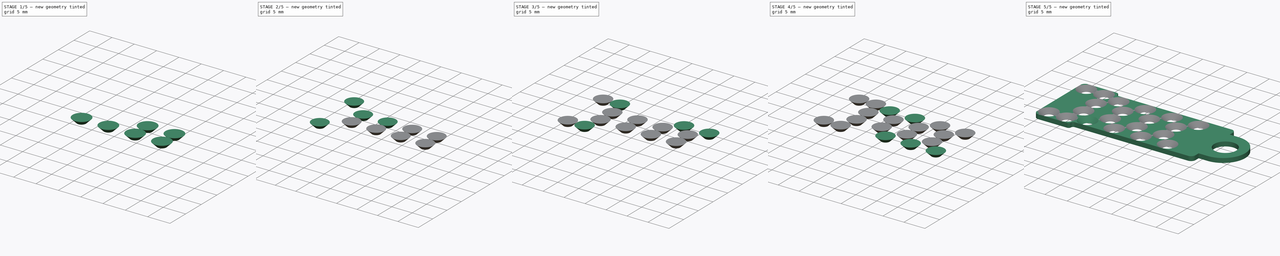
[diagram: build sequence overview — one tinted view per stage of 5, left to right]
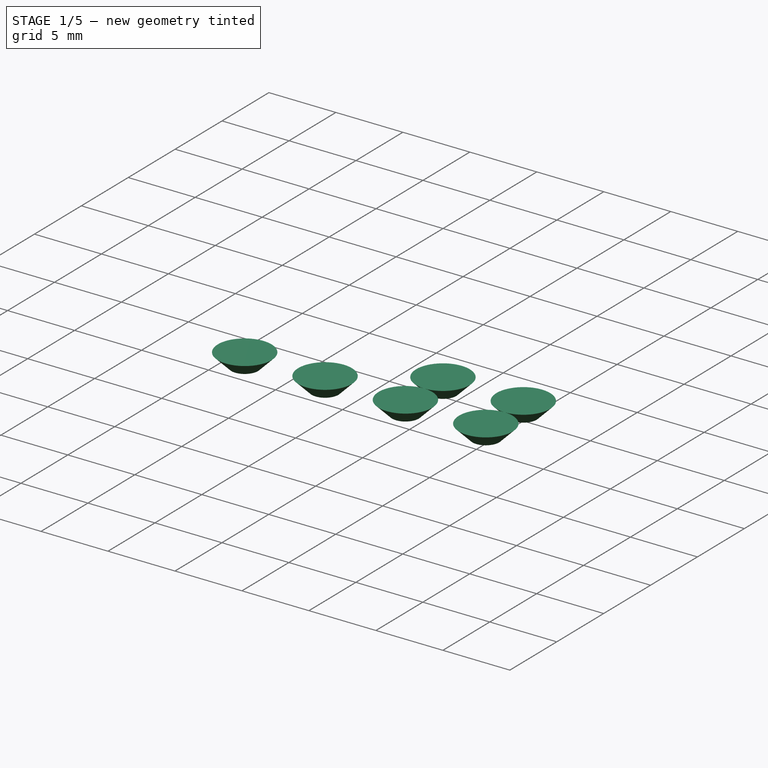
[diagram: stage 1 of 5 — iso view after this stage's code; geometry added in this stage tinted green]
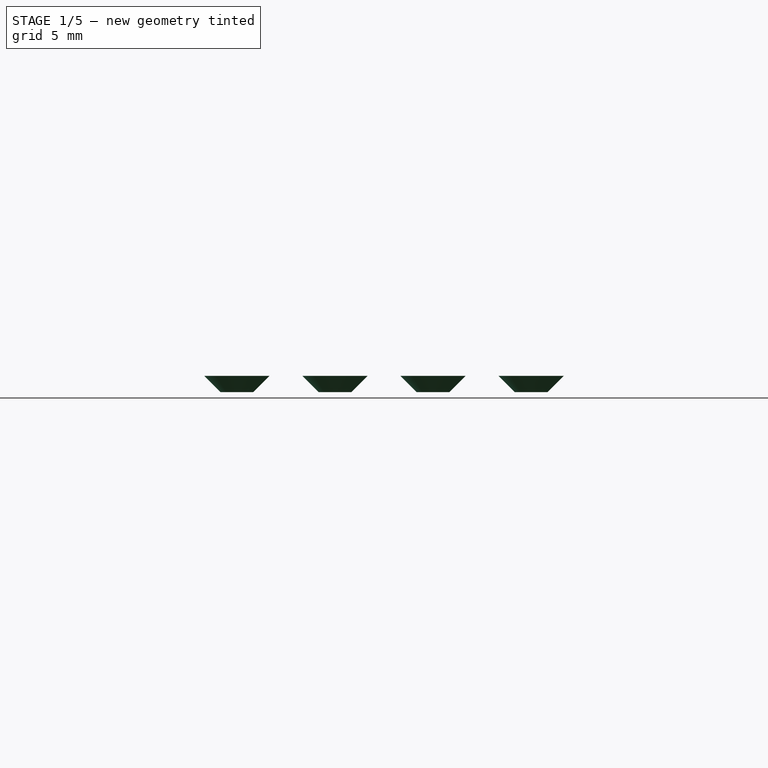
[diagram: stage 1 of 5 — front view after this stage's code; geometry added in this stage tinted green]
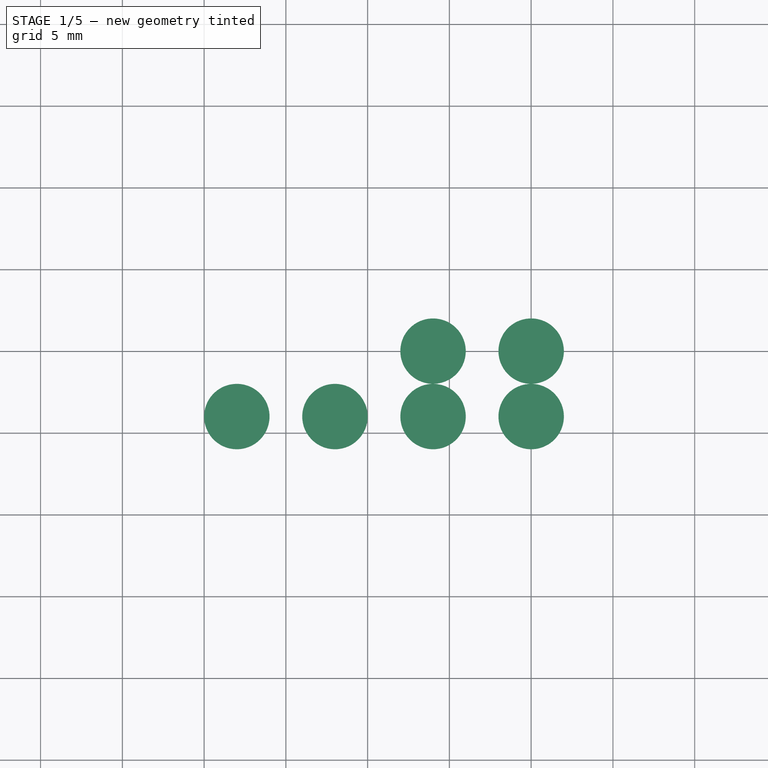
[diagram: stage 1 of 5 — top view after this stage's code; geometry added in this stage tinted green]
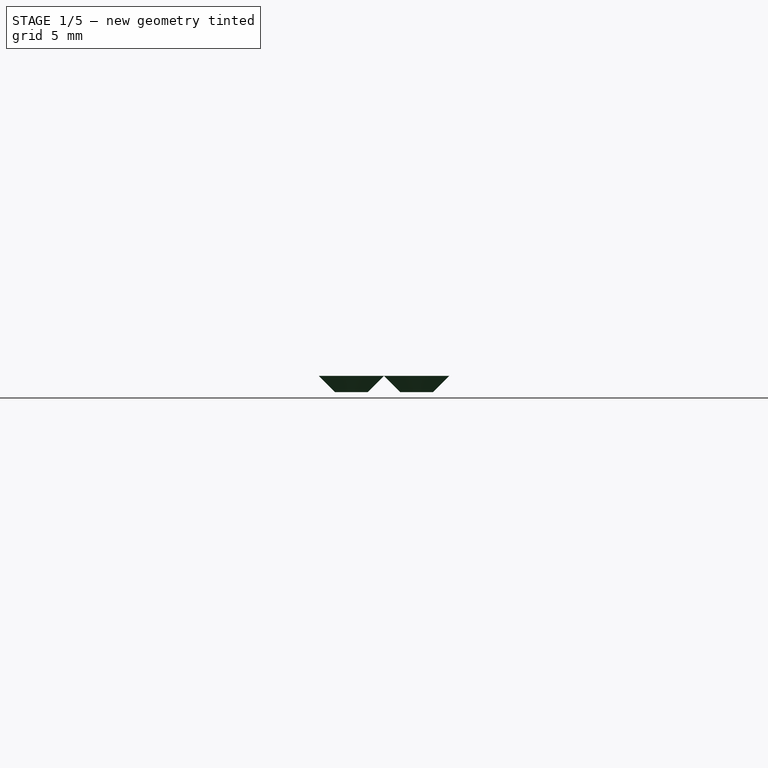
[diagram: stage 1 of 5 — right view after this stage's code; geometry added in this stage tinted green]
FCSTD DOCUMENT  (FreeCAD 0.14R3702 (Git))
Label: scaleauto-c
License: CC-BY 3.0
LicenseURL: http://creativecommons.org/licenses/by/3.0/
objects: Sketcher::SketchObject×42, Part::Loft×20, Part::MultiFuse×9, Part::Extrusion×2, Part::Cut×2
note: 75 computed .brp shape members not serialized (recipe doc carries the construction recipe); baked Part::Feature solids carry a one-line shape summary decoded from their .brp

FEATURE [Sketcher::SketchObject] Sketch010
  sketch-geometry (1):
    g0: Circle CenterX=2 CenterY=2 CenterZ=0 NormalX=0 NormalY=0 NormalZ=1 Radius=1
FEATURE [Sketcher::SketchObject] Sketch011
  Placement = pos=(0,0,1) rot=(0,0,1;0rad)
  sketch-geometry (1):
    g0: Circle CenterX=2 CenterY=2 CenterZ=0 NormalX=0 NormalY=0 NormalZ=1 Radius=2
FEATURE [Part::Loft] Loft004
  Closed = false
  Placement = pos=(5,4,0) rot=(0,0,1;0rad)
  Ruled = false
  Sections = -> [Sketch011,Sketch010]
  Solid = true
FEATURE [Sketcher::SketchObject] Sketch016
  sketch-geometry (1):
    g0: Circle CenterX=2 CenterY=2 CenterZ=0 NormalX=0 NormalY=0 NormalZ=1 Radius=1
FEATURE [Sketcher::SketchObject] Sketch017
  Placement = pos=(0,0,1) rot=(0,0,1;0rad)
  sketch-geometry (1):
    g0: Circle CenterX=2 CenterY=2 CenterZ=0 NormalX=0 NormalY=0 NormalZ=1 Radius=2
FEATURE [Part::Loft] Loft007
  Closed = false
  Placement = pos=(11,4,0) rot=(0,0,1;0rad)
  Ruled = false
  Sections = -> [Sketch017,Sketch016]
  Solid = true
FEATURE [Sketcher::SketchObject] Sketch018
  sketch-geometry (1):
    g0: Circle CenterX=2 CenterY=2 CenterZ=0 NormalX=0 NormalY=0 NormalZ=1 Radius=1
FEATURE [Sketcher::SketchObject] Sketch019
  Placement = pos=(0,0,1) rot=(0,0,1;0rad)
  sketch-geometry (1):
    g0: Circle CenterX=2 CenterY=2 CenterZ=0 NormalX=0 NormalY=0 NormalZ=1 Radius=2
FEATURE [Part::Loft] Loft008
  Closed = false
  Placement = pos=(17,4,0) rot=(0,0,1;0rad)
  Ruled = false
  Sections = -> [Sketch019,Sketch018]
  Solid = true
FEATURE [Sketcher::SketchObject] Sketch020
  sketch-geometry (1):
    g0: Circle CenterX=2 CenterY=2 CenterZ=0 NormalX=0 NormalY=0 NormalZ=1 Radius=1
FEATURE [Sketcher::SketchObject] Sketch021
  Placement = pos=(0,0,1) rot=(0,0,1;0rad)
  sketch-geometry (1):
    g0: Circle CenterX=2 CenterY=2 CenterZ=0 NormalX=0 NormalY=0 NormalZ=1 Radius=2
FEATURE [Part::Loft] Loft009
  Closed = false
  Placement = pos=(17,8,0) rot=(0,0,1;0rad)
  Ruled = false
  Sections = -> [Sketch021,Sketch020]
  Solid = true
FEATURE [Sketcher::SketchObject] Sketch022
  sketch-geometry (1):
    g0: Circle CenterX=2 CenterY=2 CenterZ=0 NormalX=0 NormalY=0 NormalZ=1 Radius=1
FEATURE [Sketcher::SketchObject] Sketch023
  Placement = pos=(0,0,1) rot=(0,0,1;0rad)
  sketch-geometry (1):
    g0: Circle CenterX=2 CenterY=2 CenterZ=0 NormalX=0 NormalY=0 NormalZ=1 Radius=2
FEATURE [Part::Loft] Loft010
  Closed = false
  Placement = pos=(23,8,0) rot=(0,0,1;0rad)
  Ruled = false
  Sections = -> [Sketch023,Sketch022]
  Solid = true
FEATURE [Sketcher::SketchObject] Sketch024
  sketch-geometry (1):
    g0: Circle CenterX=2 CenterY=2 CenterZ=0 NormalX=0 NormalY=0 NormalZ=1 Radius=1
FEATURE [Sketcher::SketchObject] Sketch025
  Placement = pos=(0,0,1) rot=(0,0,1;0rad)
  sketch-geometry (1):
    g0: Circle CenterX=2 CenterY=2 CenterZ=0 NormalX=0 NormalY=0 NormalZ=1 Radius=2
FEATURE [Part::Loft] Loft011
  Closed = false
  Placement = pos=(23,4,0) rot=(0,0,1;0rad)
  Ruled = false
  Sections = -> [Sketch025,Sketch024]
  Solid = true
FEATURE [Part::MultiFuse] Fusion003
  Placement = pos=(0.001,-0.001,0) rot=(0,0,1;0rad)
  Shapes = -> [Loft008,Loft007,Loft004,Loft011]
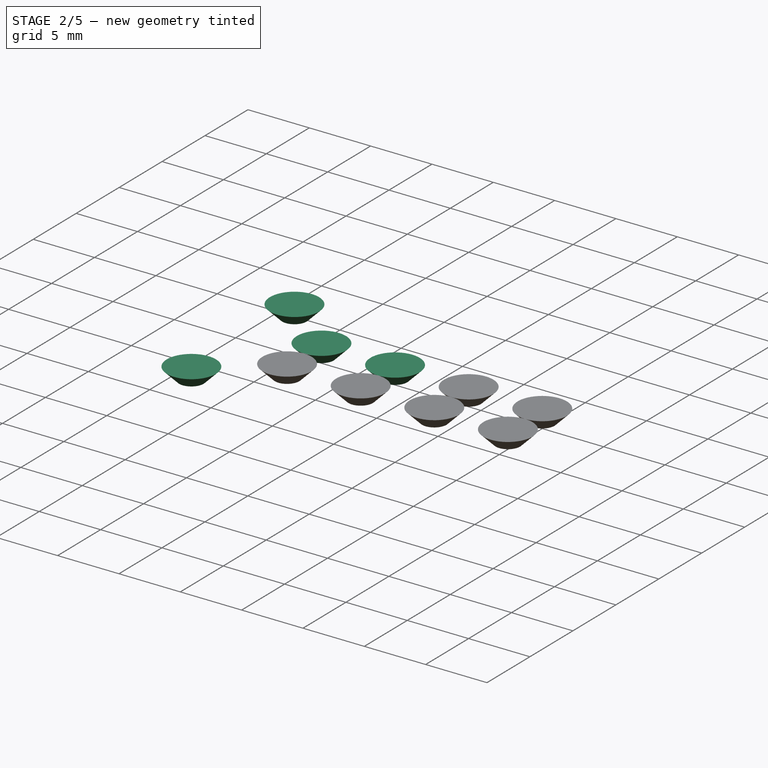
[diagram: stage 2 of 5 — iso view after this stage's code; geometry added in this stage tinted green]
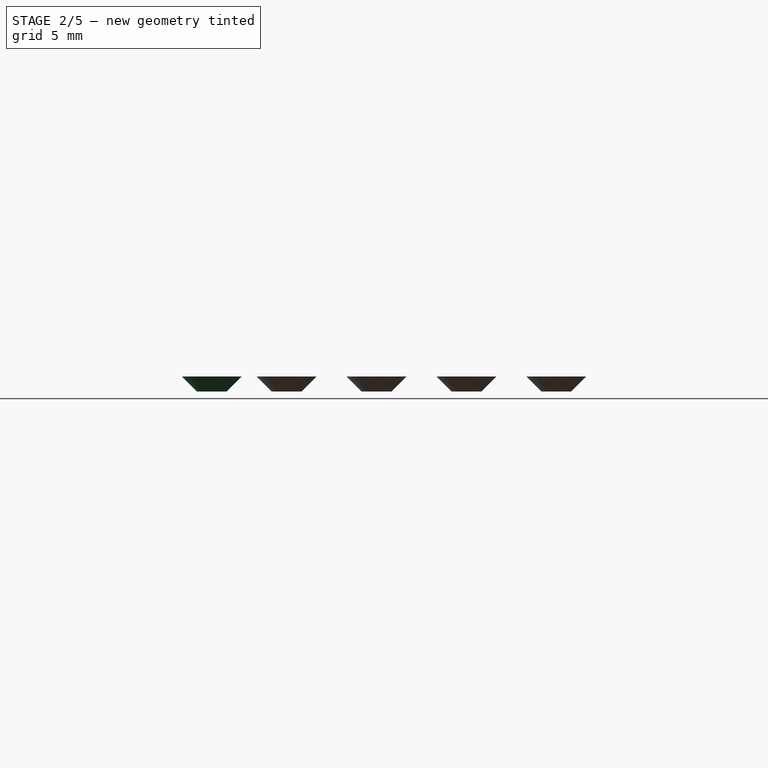
[diagram: stage 2 of 5 — front view after this stage's code; geometry added in this stage tinted green]
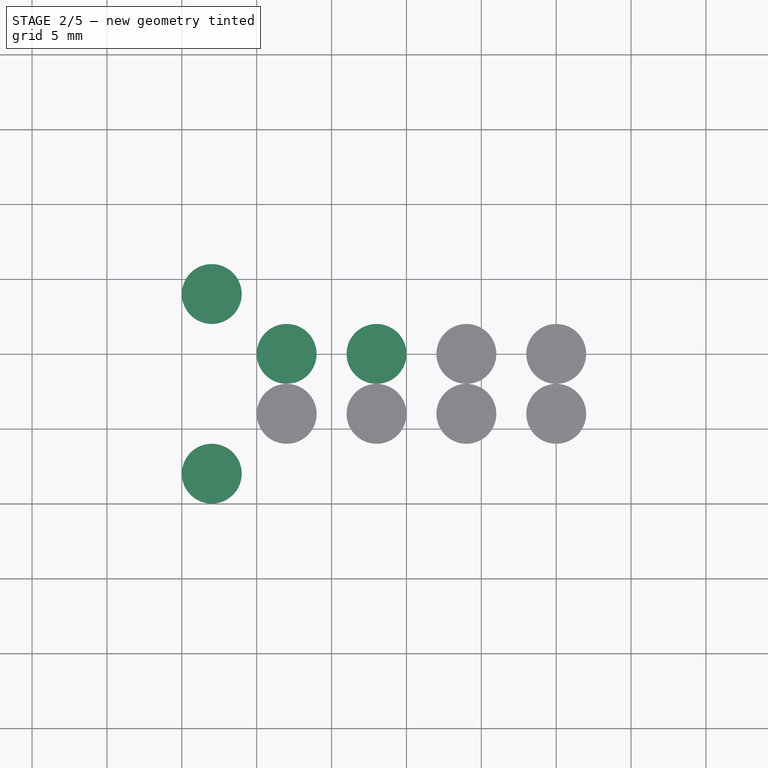
[diagram: stage 2 of 5 — top view after this stage's code; geometry added in this stage tinted green]
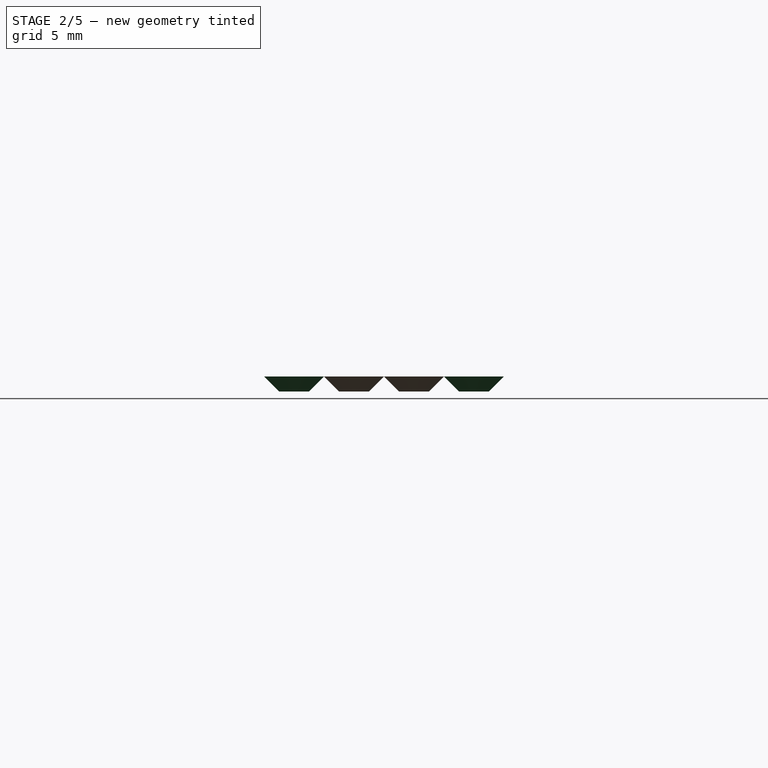
[diagram: stage 2 of 5 — right view after this stage's code; geometry added in this stage tinted green]
FEATURE [Sketcher::SketchObject] Sketch
  sketch-geometry (18):
    g0: LineSegment StartX=0 StartY=0.999999 StartZ=0 EndX=0 EndY=15 EndZ=0
    g1: ArcOfCircle CenterX=1 CenterY=1 CenterZ=0 NormalX=0 NormalY=0 NormalZ=1 Radius=1 StartAngle=3.14159 EndAngle=4.71239
    g2: ArcOfCircle CenterX=1 CenterY=15 CenterZ=0 NormalX=0 NormalY=0 NormalZ=1 Radius=1 StartAngle=1.5708 EndAngle=3.14159
    g3: LineSegment StartX=1 StartY=16 StartZ=0 EndX=7.5 EndY=16 EndZ=0
    g4: ArcOfCircle CenterX=7.5 CenterY=15.5 CenterZ=0 NormalX=0 NormalY=0 NormalZ=1 Radius=0.5 StartAngle=0 EndAngle=1.5708
    g5: ArcOfCircle CenterX=8.5 CenterY=15.5 CenterZ=0 NormalX=0 NormalY=0 NormalZ=1 Radius=0.5 StartAngle=3.14159 EndAngle=4.71239
    g6: LineSegment StartX=34 StartY=15 StartZ=0 EndX=8.5 EndY=15 EndZ=0
    g7: ArcOfCircle CenterX=34 CenterY=14 CenterZ=0 NormalX=0 NormalY=0 NormalZ=1 Radius=1 StartAngle=0 EndAngle=1.5708
    g8: LineSegment StartX=35 StartY=14 StartZ=0 EndX=35 EndY=13 EndZ=0
    g9: LineSegment StartX=7.5 StartY=-1.73205e-07 StartZ=0 EndX=1 EndY=-1.73205e-07 EndZ=0
    g10: ArcOfCircle CenterX=7.5 CenterY=0.5 CenterZ=0 NormalX=0 NormalY=0 NormalZ=1 Radius=0.5 StartAngle=4.71239 EndAngle=6.28319
    g11: ArcOfCircle CenterX=8.5 CenterY=0.5 CenterZ=0 NormalX=0 NormalY=0 NormalZ=1 Radius=0.5 StartAngle=1.5708 EndAngle=3.14159
    g12: LineSegment StartX=8.5 StartY=1 StartZ=0 EndX=34 EndY=1 EndZ=0
    g13: ArcOfCircle CenterX=34 CenterY=2 CenterZ=0 NormalX=0 NormalY=0 NormalZ=1 Radius=1 StartAngle=4.71239 EndAngle=6.28319
    g14: LineSegment StartX=35 StartY=2 StartZ=0 EndX=35 EndY=3 EndZ=0
    g15: LineSegment StartX=35 StartY=13 StartZ=0 EndX=37 EndY=13 EndZ=0
    g16: ArcOfCircle CenterX=37 CenterY=8 CenterZ=0 NormalX=0 NormalY=0 NormalZ=1 Radius=5 StartAngle=4.71239 EndAngle=7.85398
    g17: LineSegment StartX=37 StartY=3 StartZ=0 EndX=35 EndY=3 EndZ=0
  constraints (30):
    c: PointOnObject(g0,g-2)
    c: Vertical(g0)
    c: Coincident(g1,g0)
    c: Coincident(g3,g2)
    c: Horizontal(g3)
    c: Coincident(g4,g3)
    c: Coincident(g5,g4)
    c: Coincident(g6,g5)
    c: Horizontal(g6)
    c: Tangent(g6,g4)
    c: Coincident(g8,g7)
    c: Vertical(g8)
    c: Coincident(g9,g1)
    c: Horizontal(g9)
    c: Coincident(g10,g9)
    c: Coincident(g11,g10)
    c: Coincident(g12,g11)
    c: Horizontal(g12)
    c: Coincident(g13,g12)
    c: Coincident(g14,g13)
    c: Vertical(g14)
    c: Tangent(g14,g7)
    c: Coincident(g0,g2)
    c: Coincident(g7,g6)
    c: Coincident(g15,g8)
    c: Horizontal(g15)
    c: Coincident(g17,g16)
    c: Coincident(g17,g14)
    c: Horizontal(g17)
    c: Coincident(g15,g16)
FEATURE [Sketcher::SketchObject] Sketch001
  Placement = pos=(-2,0,0) rot=(0,0,1;0rad)
  sketch-geometry (1):
    g0: Circle CenterX=39.5 CenterY=8 CenterZ=0 NormalX=0 NormalY=0 NormalZ=1 Radius=2.5
FEATURE [Sketcher::SketchObject] Sketch002
  Placement = pos=(0,0,1) rot=(0,0,1;0rad)
  sketch-geometry (1):
    g0: Circle CenterX=2 CenterY=2 CenterZ=0 NormalX=0 NormalY=0 NormalZ=1 Radius=2
FEATURE [Sketcher::SketchObject] Sketch003
  sketch-geometry (1):
    g0: Circle CenterX=2 CenterY=2 CenterZ=0 NormalX=0 NormalY=0 NormalZ=1 Radius=1
FEATURE [Part::Loft] Loft
  Closed = false
  Ruled = false
  Sections = -> [Sketch002,Sketch003]
  Solid = true
FEATURE [Sketcher::SketchObject] Sketch006
  sketch-geometry (1):
    g0: Circle CenterX=2 CenterY=2 CenterZ=0 NormalX=0 NormalY=0 NormalZ=1 Radius=1
FEATURE [Sketcher::SketchObject] Sketch007
  Placement = pos=(0,0,1) rot=(0,0,1;0rad)
  sketch-geometry (1):
    g0: Circle CenterX=2 CenterY=2 CenterZ=0 NormalX=0 NormalY=0 NormalZ=1 Radius=2
FEATURE [Sketcher::SketchObject] Sketch008
  sketch-geometry (1):
    g0: Circle CenterX=2 CenterY=2 CenterZ=0 NormalX=0 NormalY=0 NormalZ=1 Radius=1
FEATURE [Part::Loft] Loft003
  Closed = false
  Placement = pos=(0,12,0) rot=(0,0,1;0rad)
  Ruled = false
  Sections = -> [Sketch007,Sketch006]
  Solid = true
FEATURE [Sketcher::SketchObject] Sketch012
  sketch-geometry (1):
    g0: Circle CenterX=2 CenterY=2 CenterZ=0 NormalX=0 NormalY=0 NormalZ=1 Radius=1
FEATURE [Sketcher::SketchObject] Sketch013
  Placement = pos=(0,0,1) rot=(0,0,1;0rad)
  sketch-geometry (1):
    g0: Circle CenterX=2 CenterY=2 CenterZ=0 NormalX=0 NormalY=0 NormalZ=1 Radius=2
FEATURE [Part::Loft] Loft005
  Closed = false
  Placement = pos=(5,8,0) rot=(0,0,1;0rad)
  Ruled = false
  Sections = -> [Sketch013,Sketch012]
  Solid = true
FEATURE [Sketcher::SketchObject] Sketch014
  sketch-geometry (1):
    g0: Circle CenterX=2 CenterY=2 CenterZ=0 NormalX=0 NormalY=0 NormalZ=1 Radius=1
FEATURE [Sketcher::SketchObject] Sketch015
  Placement = pos=(0,0,1) rot=(0,0,1;0rad)
  sketch-geometry (1):
    g0: Circle CenterX=2 CenterY=2 CenterZ=0 NormalX=0 NormalY=0 NormalZ=1 Radius=2
FEATURE [Part::Loft] Loft006
  Closed = false
  Placement = pos=(11,8,0) rot=(0,0,1;0rad)
  Ruled = false
  Sections = -> [Sketch015,Sketch014]
  Solid = true
FEATURE [Part::MultiFuse] Fusion002
  Placement = pos=(0.001,0.001,0) rot=(0,0,1;0rad)
  Shapes = -> [Loft005,Loft006,Loft010,Loft009]
FEATURE [Part::MultiFuse] Fusion007
  Shapes = -> [Fusion002,Fusion003]
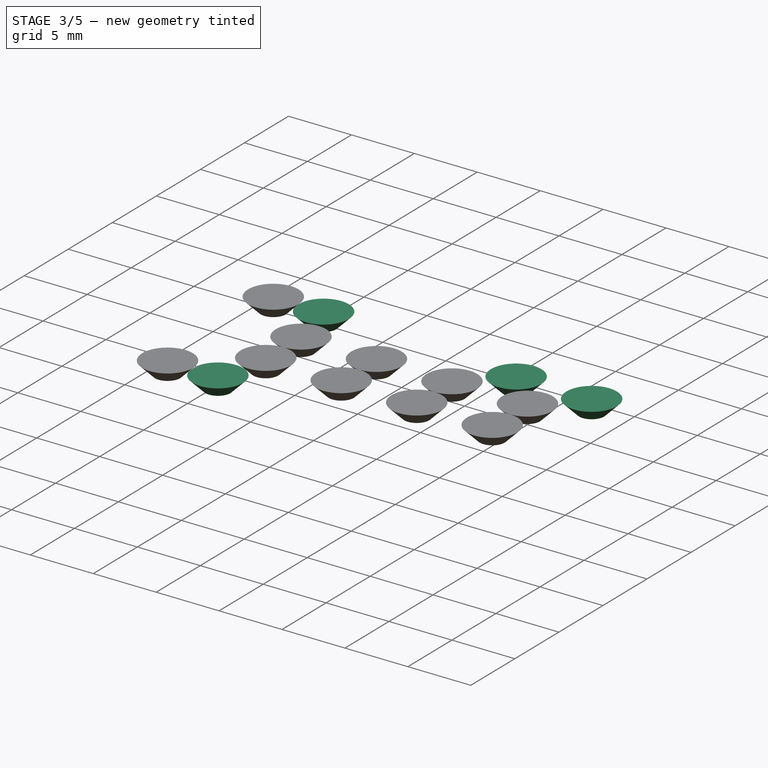
[diagram: stage 3 of 5 — iso view after this stage's code; geometry added in this stage tinted green]
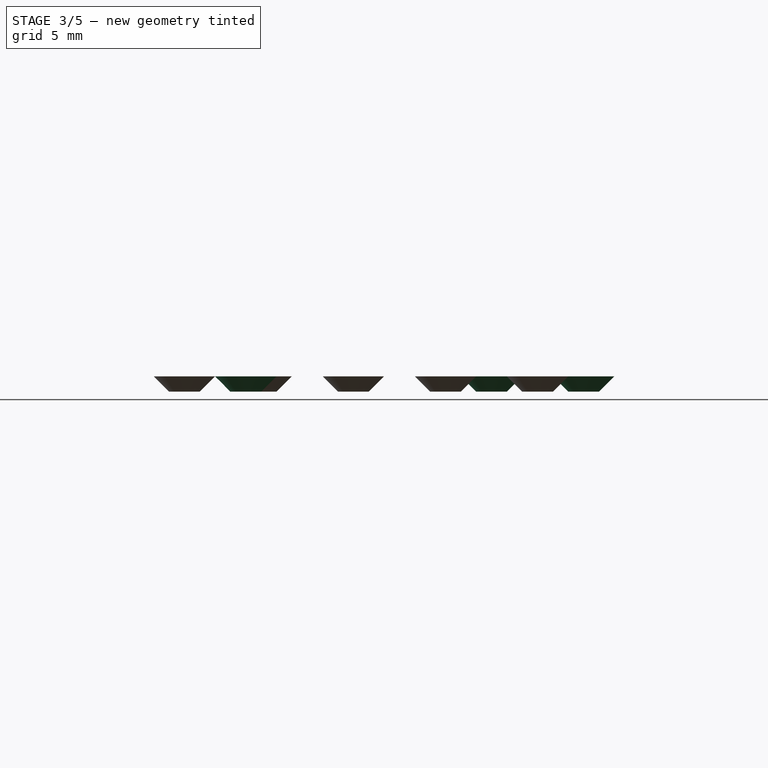
[diagram: stage 3 of 5 — front view after this stage's code; geometry added in this stage tinted green]
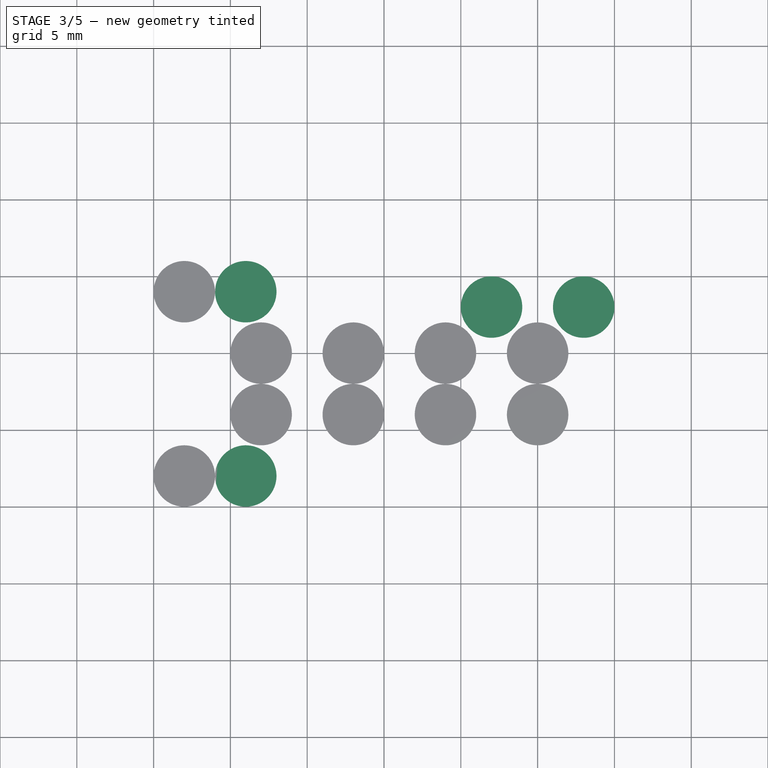
[diagram: stage 3 of 5 — top view after this stage's code; geometry added in this stage tinted green]
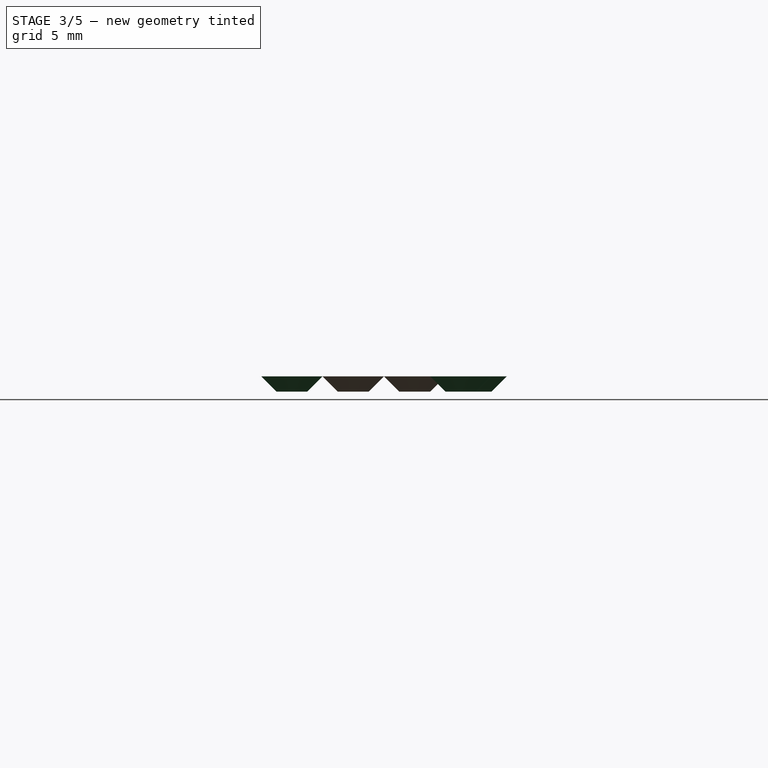
[diagram: stage 3 of 5 — right view after this stage's code; geometry added in this stage tinted green]
FEATURE [Sketcher::SketchObject] Sketch004
  sketch-geometry (1):
    g0: Circle CenterX=2 CenterY=2 CenterZ=0 NormalX=0 NormalY=0 NormalZ=1 Radius=1
FEATURE [Sketcher::SketchObject] Sketch005
  Placement = pos=(0,0,1) rot=(0,0,1;0rad)
  sketch-geometry (1):
    g0: Circle CenterX=2 CenterY=2 CenterZ=0 NormalX=0 NormalY=0 NormalZ=1 Radius=2
FEATURE [Part::Loft] Loft001
  Closed = false
  Placement = pos=(4,0,0) rot=(0,0,1;0rad)
  Ruled = false
  Sections = -> [Sketch005,Sketch004]
  Solid = true
FEATURE [Sketcher::SketchObject] Sketch009
  Placement = pos=(0,0,1) rot=(0,0,1;0rad)
  sketch-geometry (1):
    g0: Circle CenterX=2 CenterY=2 CenterZ=0 NormalX=0 NormalY=0 NormalZ=1 Radius=2
FEATURE [Part::Loft] Loft002
  Closed = false
  Placement = pos=(4,12,0) rot=(0,0,1;0rad)
  Ruled = false
  Sections = -> [Sketch009,Sketch008]
  Solid = true
FEATURE [Sketcher::SketchObject] Sketch038
  sketch-geometry (1):
    g0: Circle CenterX=2 CenterY=2 CenterZ=0 NormalX=0 NormalY=0 NormalZ=1 Radius=1
FEATURE [Sketcher::SketchObject] Sketch039
  sketch-geometry (1):
    g0: Circle CenterX=2 CenterY=2 CenterZ=0 NormalX=0 NormalY=0 NormalZ=1 Radius=1
FEATURE [Sketcher::SketchObject] Sketch040
  Placement = pos=(0,0,1) rot=(0,0,1;0rad)
  sketch-geometry (1):
    g0: Circle CenterX=2 CenterY=2 CenterZ=0 NormalX=0 NormalY=0 NormalZ=1 Radius=2
FEATURE [Part::Loft] Loft018
  Closed = false
  Placement = pos=(20,11,0) rot=(0,0,1;0rad)
  Ruled = false
  Sections = -> [Sketch040,Sketch038]
  Solid = true
FEATURE [Sketcher::SketchObject] Sketch041
  Placement = pos=(0,0,1) rot=(0,0,1;0rad)
  sketch-geometry (1):
    g0: Circle CenterX=2 CenterY=2 CenterZ=0 NormalX=0 NormalY=0 NormalZ=1 Radius=2
FEATURE [Part::Loft] Loft019
  Closed = false
  Placement = pos=(26,11,0) rot=(0,0,1;0rad)
  Ruled = false
  Sections = -> [Sketch041,Sketch039]
  Solid = true
FEATURE [Part::MultiFuse] Fusion004
  Shapes = -> [Loft002,Loft001]
FEATURE [Part::MultiFuse] Fusion005
  Placement = pos=(-0.001,0,0) rot=(0,0,1;0rad)
  Shapes = -> [Loft003,Loft]
FEATURE [Part::MultiFuse] Fusion006
  Shapes = -> [Fusion005,Fusion004]
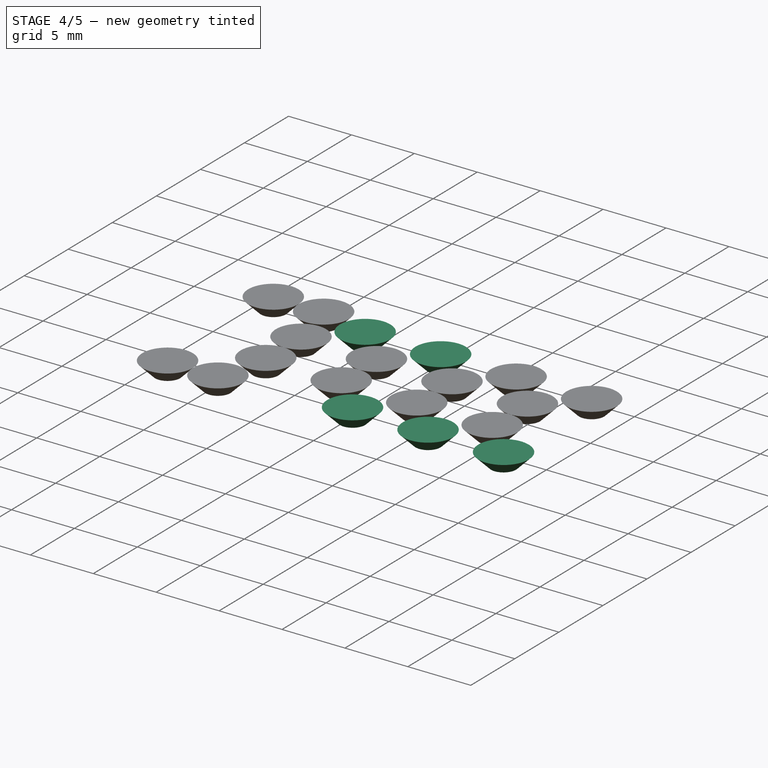
[diagram: stage 4 of 5 — iso view after this stage's code; geometry added in this stage tinted green]
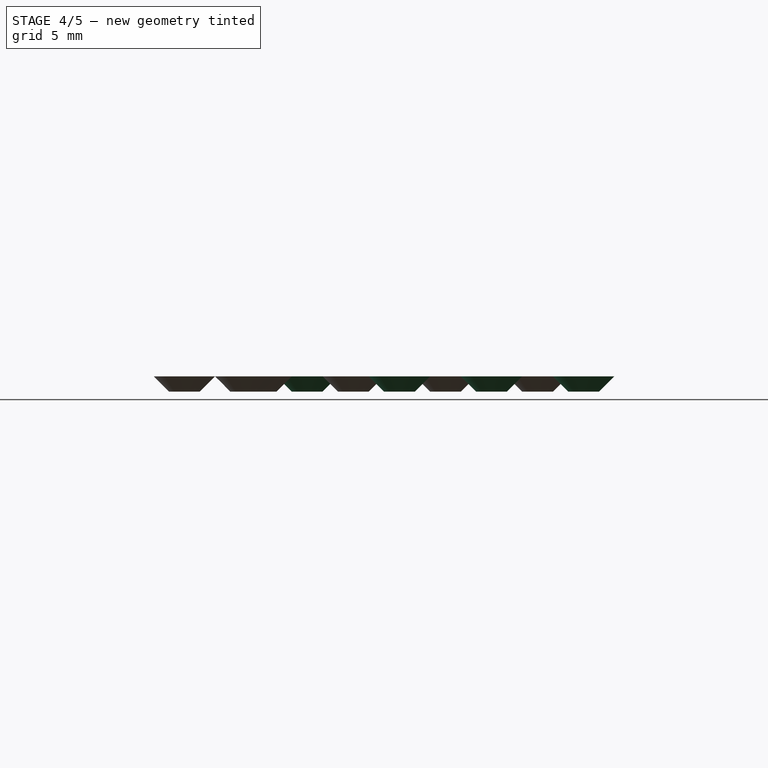
[diagram: stage 4 of 5 — front view after this stage's code; geometry added in this stage tinted green]
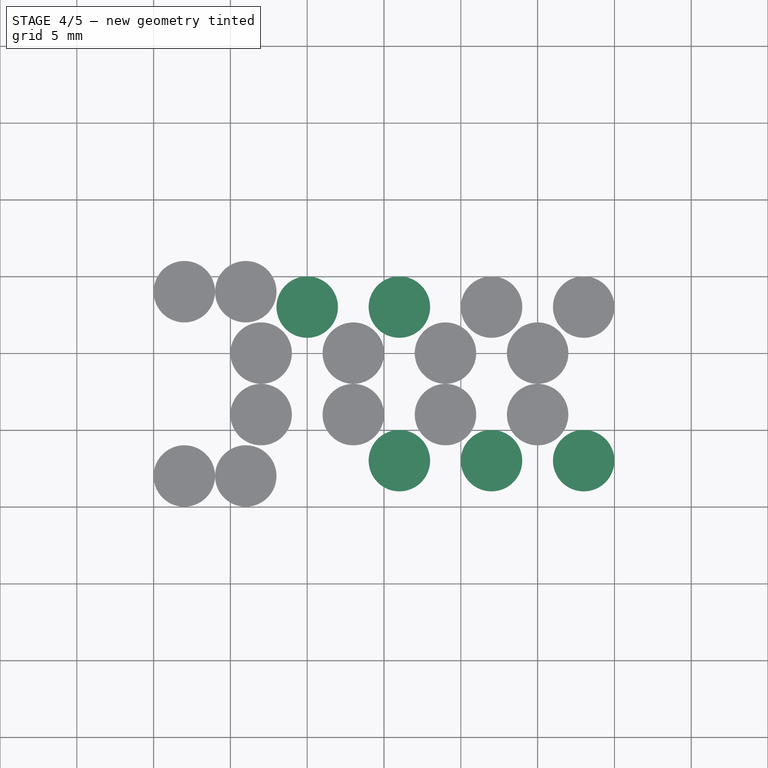
[diagram: stage 4 of 5 — top view after this stage's code; geometry added in this stage tinted green]
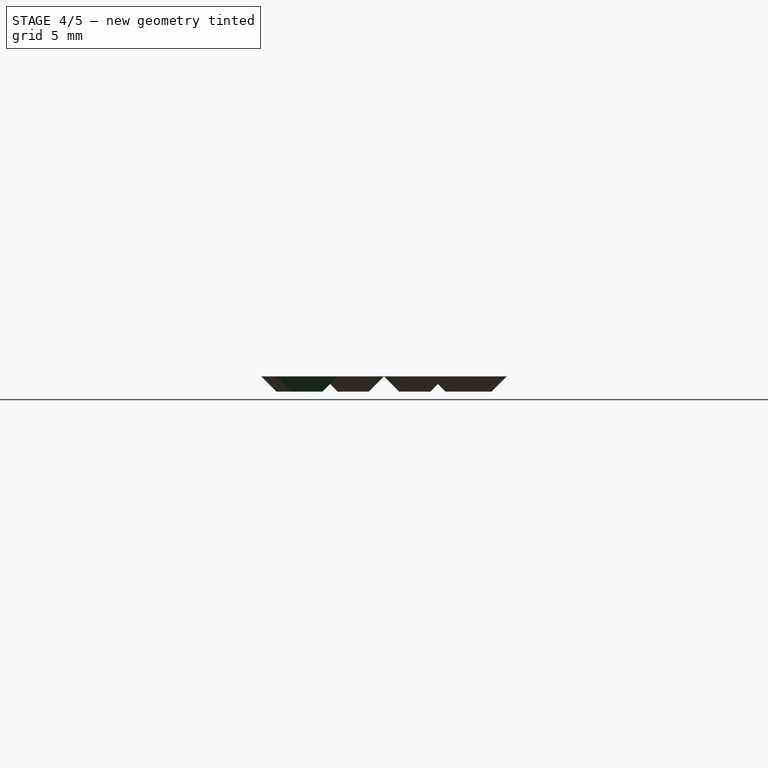
[diagram: stage 4 of 5 — right view after this stage's code; geometry added in this stage tinted green]
FEATURE [Sketcher::SketchObject] Sketch028
  sketch-geometry (1):
    g0: Circle CenterX=2 CenterY=2 CenterZ=0 NormalX=0 NormalY=0 NormalZ=1 Radius=1
FEATURE [Sketcher::SketchObject] Sketch029
  Placement = pos=(0,0,1) rot=(0,0,1;0rad)
  sketch-geometry (1):
    g0: Circle CenterX=2 CenterY=2 CenterZ=0 NormalX=0 NormalY=0 NormalZ=1 Radius=2
FEATURE [Part::Loft] Loft013
  Closed = false
  Placement = pos=(14,1,0) rot=(0,0,1;0rad)
  Ruled = false
  Sections = -> [Sketch029,Sketch028]
  Solid = true
FEATURE [Sketcher::SketchObject] Sketch030
  sketch-geometry (1):
    g0: Circle CenterX=2 CenterY=2 CenterZ=0 NormalX=0 NormalY=0 NormalZ=1 Radius=1
FEATURE [Sketcher::SketchObject] Sketch031
  Placement = pos=(0,0,1) rot=(0,0,1;0rad)
  sketch-geometry (1):
    g0: Circle CenterX=2 CenterY=2 CenterZ=0 NormalX=0 NormalY=0 NormalZ=1 Radius=2
FEATURE [Part::Loft] Loft014
  Closed = false
  Placement = pos=(20,1,0) rot=(0,0,1;0rad)
  Ruled = false
  Sections = -> [Sketch031,Sketch030]
  Solid = true
FEATURE [Sketcher::SketchObject] Sketch032
  sketch-geometry (1):
    g0: Circle CenterX=2 CenterY=2 CenterZ=0 NormalX=0 NormalY=0 NormalZ=1 Radius=1
FEATURE [Sketcher::SketchObject] Sketch033
  Placement = pos=(0,0,1) rot=(0,0,1;0rad)
  sketch-geometry (1):
    g0: Circle CenterX=2 CenterY=2 CenterZ=0 NormalX=0 NormalY=0 NormalZ=1 Radius=2
FEATURE [Part::Loft] Loft015
  Closed = false
  Placement = pos=(26,1,0) rot=(0,0,1;0rad)
  Ruled = false
  Sections = -> [Sketch033,Sketch032]
  Solid = true
FEATURE [Sketcher::SketchObject] Sketch034
  sketch-geometry (1):
    g0: Circle CenterX=2 CenterY=2 CenterZ=0 NormalX=0 NormalY=0 NormalZ=1 Radius=1
FEATURE [Sketcher::SketchObject] Sketch035
  Placement = pos=(0,0,1) rot=(0,0,1;0rad)
  sketch-geometry (1):
    g0: Circle CenterX=2 CenterY=2 CenterZ=0 NormalX=0 NormalY=0 NormalZ=1 Radius=2
FEATURE [Sketcher::SketchObject] Sketch036
  sketch-geometry (1):
    g0: Circle CenterX=2 CenterY=2 CenterZ=0 NormalX=0 NormalY=0 NormalZ=1 Radius=1
FEATURE [Part::Loft] Loft017
  Closed = false
  Placement = pos=(14,11,0) rot=(0,0,1;0rad)
  Ruled = false
  Sections = -> [Sketch035,Sketch036]
  Solid = true
FEATURE [Sketcher::SketchObject] Sketch037
  Placement = pos=(0,0,1) rot=(0,0,1;0rad)
  sketch-geometry (1):
    g0: Circle CenterX=2 CenterY=2 CenterZ=0 NormalX=0 NormalY=0 NormalZ=1 Radius=2
FEATURE [Part::Loft] Loft016
  Closed = false
  Placement = pos=(8,11,0) rot=(0,0,1;0rad)
  Ruled = false
  Sections = -> [Sketch037,Sketch034]
  Solid = true
FEATURE [Part::MultiFuse] Fusion001
  Shapes = -> [Loft016,Loft017,Loft018,Loft019]
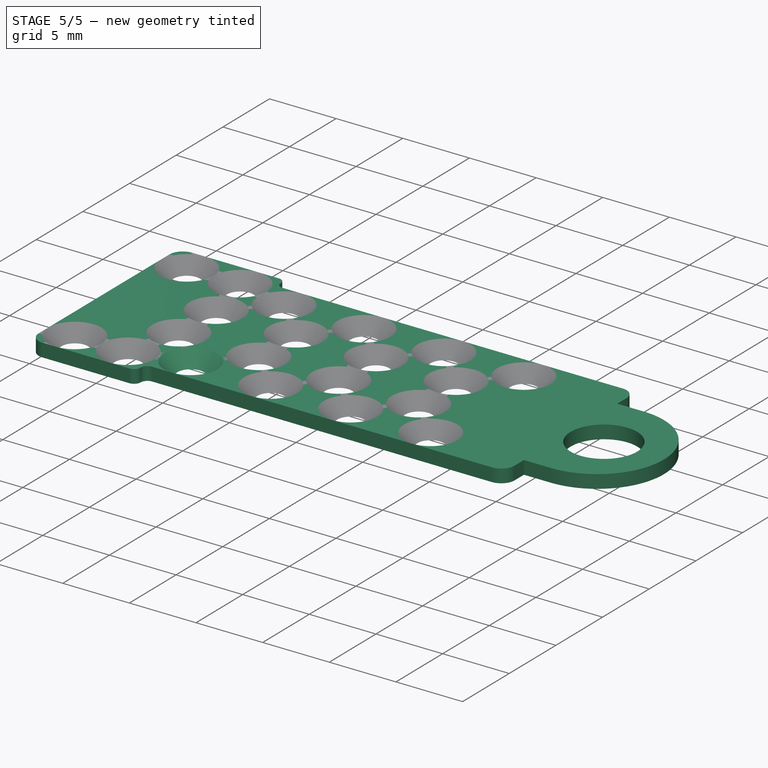
[diagram: stage 5 of 5 — iso view after this stage's code; geometry added in this stage tinted green]
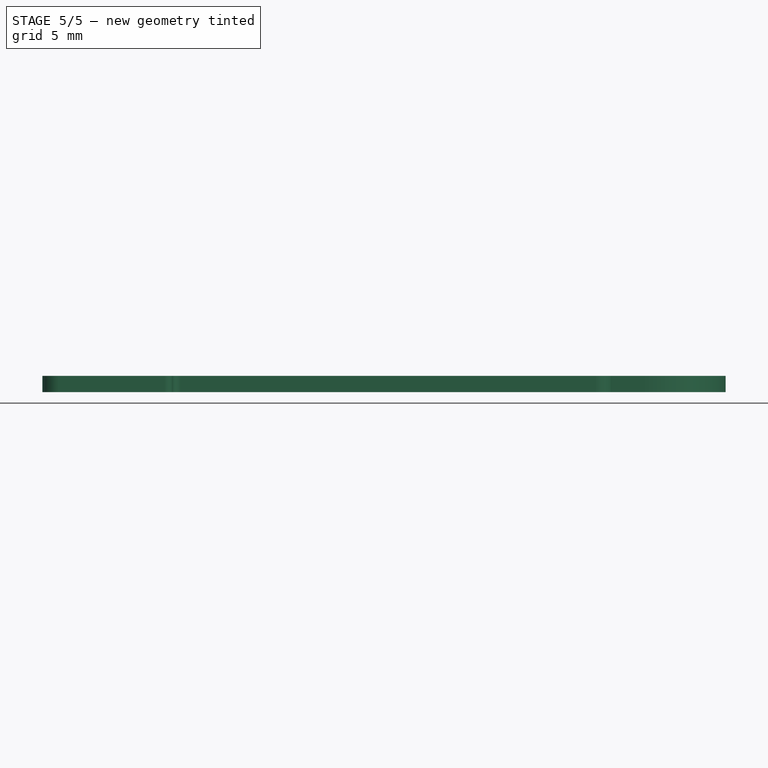
[diagram: stage 5 of 5 — front view after this stage's code; geometry added in this stage tinted green]
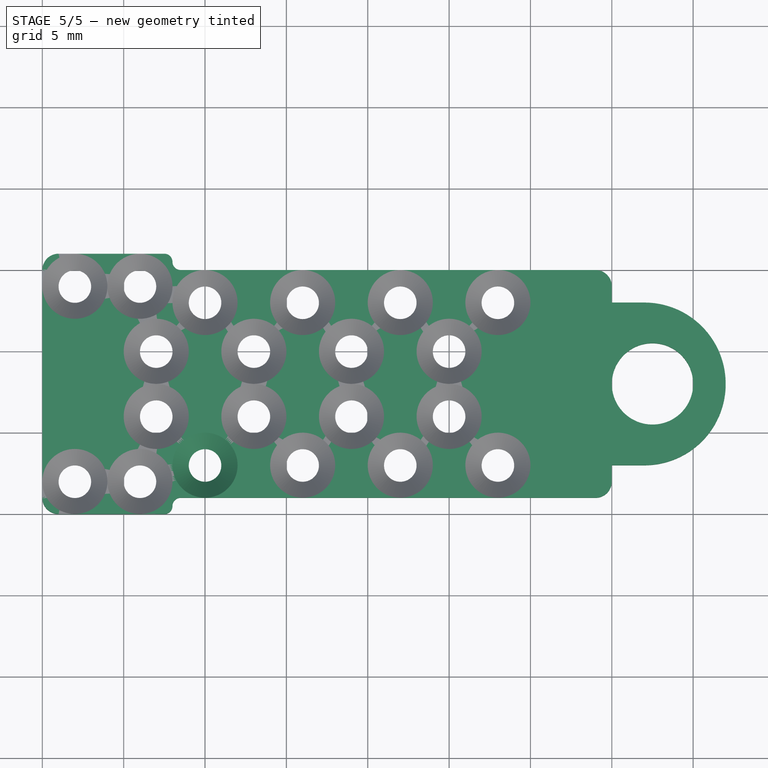
[diagram: stage 5 of 5 — top view after this stage's code; geometry added in this stage tinted green]
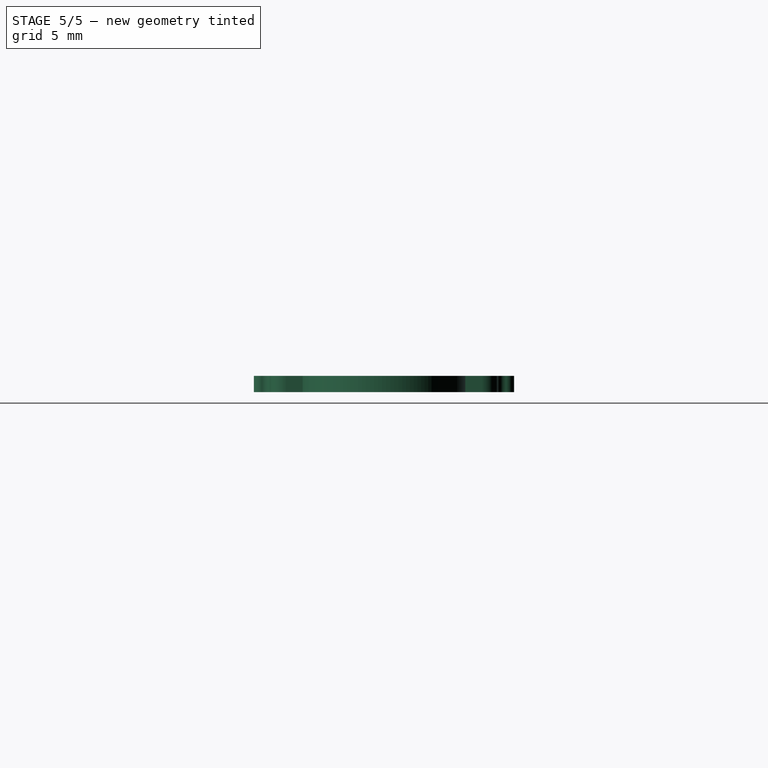
[diagram: stage 5 of 5 — right view after this stage's code; geometry added in this stage tinted green]
FEATURE [Sketcher::SketchObject] Sketch026
  sketch-geometry (1):
    g0: Circle CenterX=2 CenterY=2 CenterZ=0 NormalX=0 NormalY=0 NormalZ=1 Radius=1
FEATURE [Sketcher::SketchObject] Sketch027
  Placement = pos=(0,0,1) rot=(0,0,1;0rad)
  sketch-geometry (1):
    g0: Circle CenterX=2 CenterY=2 CenterZ=0 NormalX=0 NormalY=0 NormalZ=1 Radius=2
FEATURE [Part::Loft] Loft012
  Closed = false
  Placement = pos=(8,1,0) rot=(0,0,1;0rad)
  Ruled = false
  Sections = -> [Sketch027,Sketch026]
  Solid = true
FEATURE [Part::Extrusion] Extrude
  Base = -> Sketch
  Dir = (0,0,1)
  Solid = true
FEATURE [Part::Extrusion] Extrude001
  Base = -> Sketch001
  Dir = (0,0,1)
  Solid = true
FEATURE [Part::MultiFuse] Fusion
  Shapes = -> [Loft012,Loft013,Loft014,Loft015]
FEATURE [Part::MultiFuse] Fusion008
  Shapes = -> [Fusion006,Fusion001,Fusion007,Fusion]
FEATURE [Part::Cut] Cut
  Base = -> Extrude
  Tool = -> Fusion008
FEATURE [Part::Cut] Cut001  label="SC8000-C"
  Base = -> Cut
  Tool = -> Extrude001
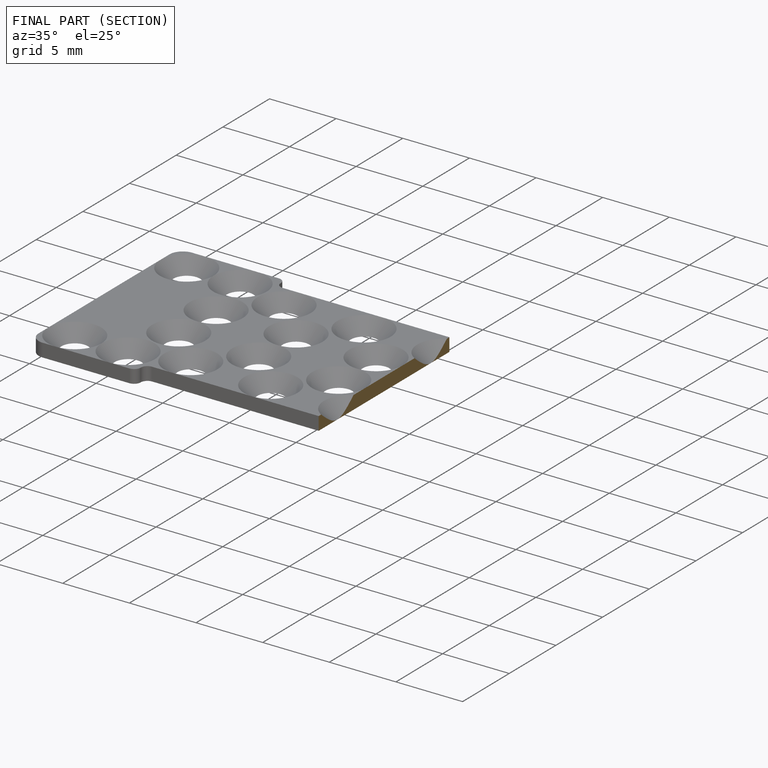
[diagram: finished part — half-section view (interior)]
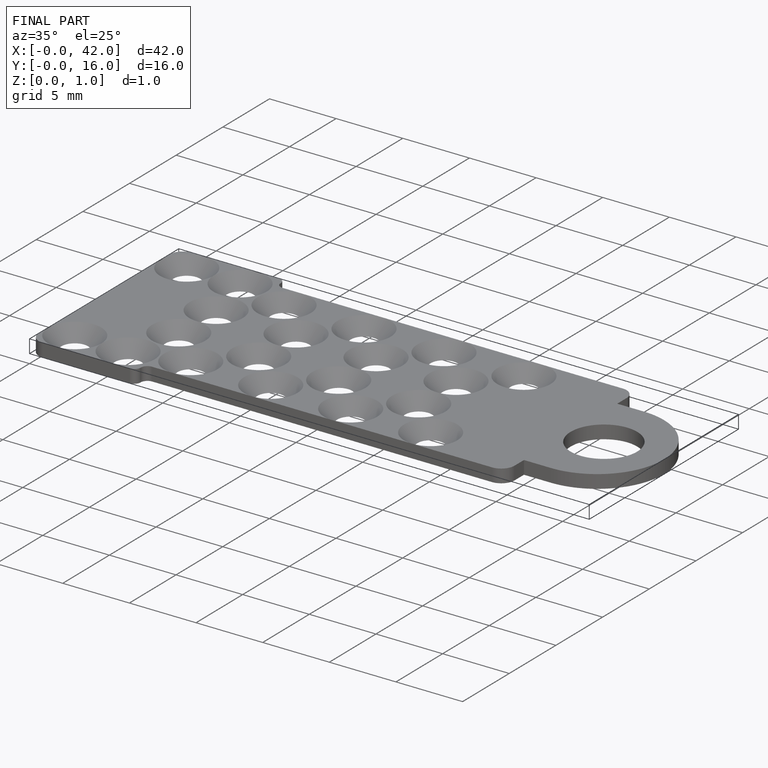
[diagram: finished part — iso view with bounding-box wireframe]
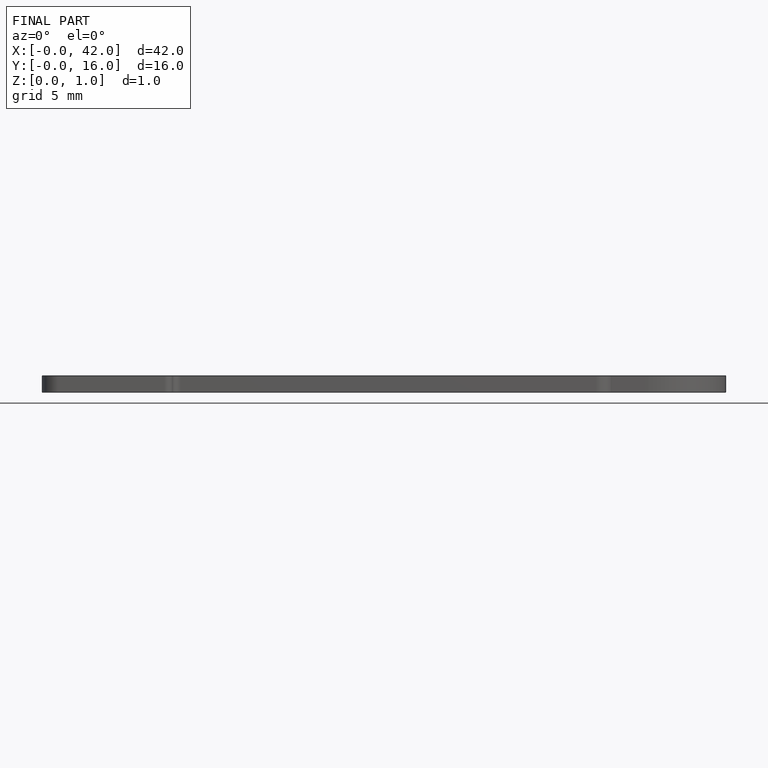
[diagram: finished part — front view with bounding-box wireframe]
